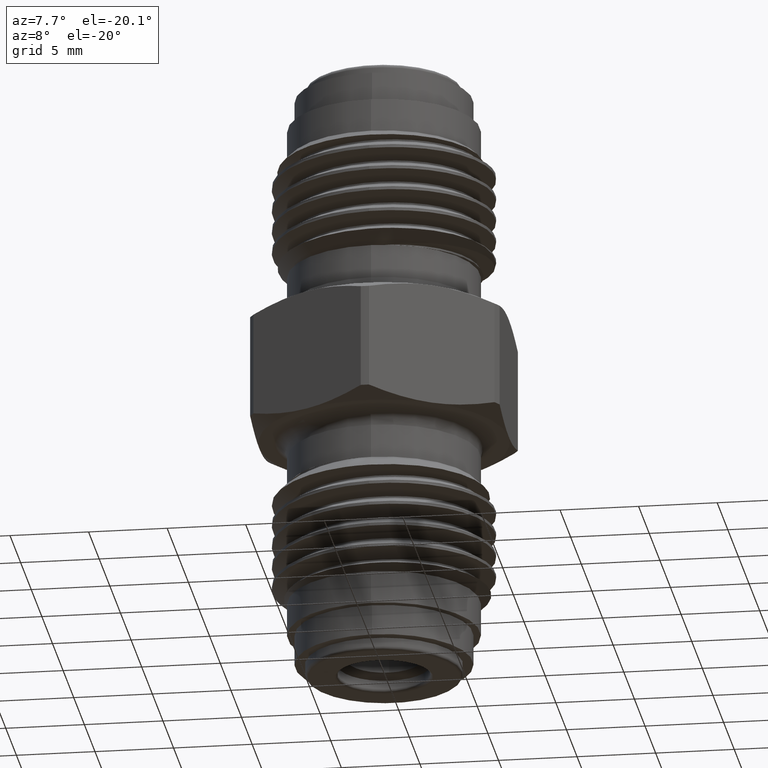
[diagram: clean part render]
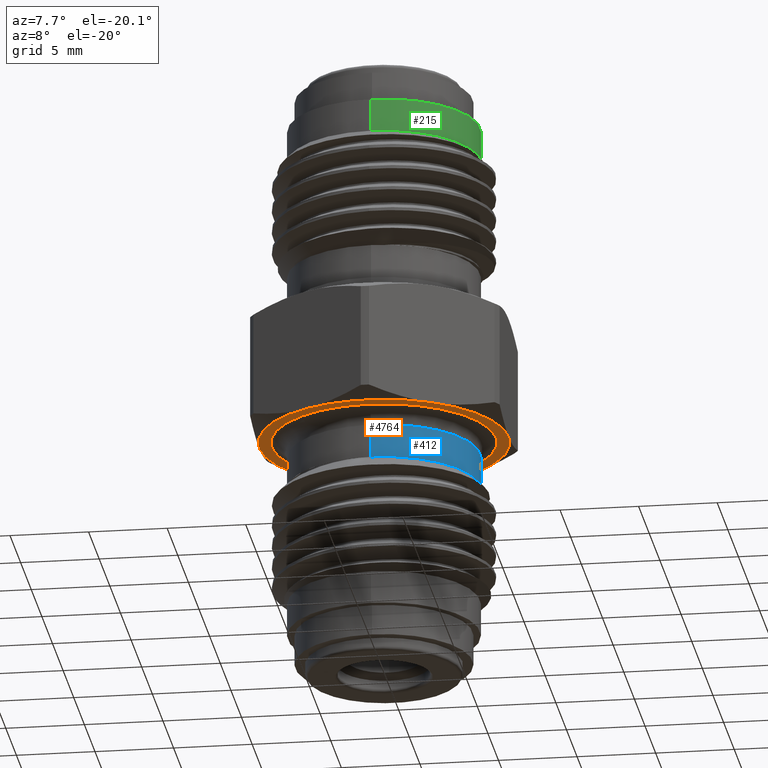
[diagram: same view with three faces highlighted in distinct colors, each labeled with its STEP entity id]
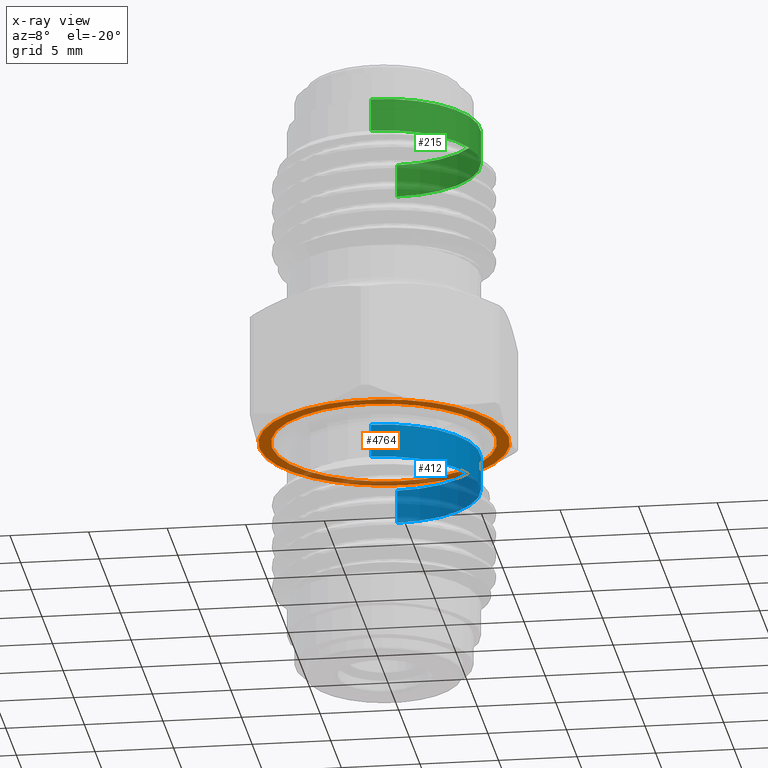
[diagram: x-ray of the same camera — body ghosted, the three highlighted faces saturated]
A machine part, auxiliary view with three faces highlighted in distinct colors.
The next image is the same camera in x-ray (body ghosted, the three faces saturated) — at least one of them is partly hidden behind the body in this view.
Their STEP definitions:

[orange] entity #4764 — the highlighted planar face has unit normal (0, 0, -1).
#330 = CIRCLE ( 'NONE', #5266, 0.2807499999999999440 ) ;
#478 = EDGE_CURVE ( 'NONE', #8395, #11326, #795, .T. ) ;
#740 = CARTESIAN_POINT ( 'NONE',  ( -0.1562499999999999722, -0.2706329386826370476, 0.6200000000000002176 ) ) ;
#795 = CIRCLE ( 'NONE', #5848, 0.3124999999999998890 ) ;
#945 = CARTESIAN_POINT ( 'NONE',  ( -0.3124999999999999445, 2.861832726960855779E-16, 0.6200000000000002176 ) ) ;
#1048 = DIRECTION ( 'NONE',  ( -6.123233995736775897E-17, -3.043985339206562950E-16, 1.000000000000000000 ) ) ;
#1206 = CARTESIAN_POINT ( 'NONE',  ( 0.3124999999999999445, 1.678907846065457719E-16, 0.6200000000000002176 ) ) ;
#1233 = CIRCLE ( 'NONE', #5167, 0.3124999999999998890 ) ;
#1550 = CARTESIAN_POINT ( 'NONE',  ( 1.709078754400476434E-18, 1.678907846065457473E-16, 0.6200000000000001066 ) ) ;
#1617 = DIRECTION ( 'NONE',  ( 1.776356839400250465E-15, 1.000000000000000000, 4.370956789862822629E-16 ) ) ;
#1982 = FACE_BOUND ( 'NONE', #12725, .T. ) ;
#2064 = AXIS2_PLACEMENT_3D ( 'NONE', #10279, #4002, #2979 ) ;
#2979 = DIRECTION ( 'NONE',  ( 0.000000000000000000, -1.000000000000000000, -4.865268020773399856E-16 ) ) ;
#3149 = ORIENTED_EDGE ( 'NONE', *, *, #12142, .T. ) ;
#3618 = CARTESIAN_POINT ( 'NONE',  ( 1.709078754400476434E-18, 1.678907846065457473E-16, 0.6200000000000001066 ) ) ;
#3625 = ORIENTED_EDGE ( 'NONE', *, *, #10004, .F. ) ;
#4002 = DIRECTION ( 'NONE',  ( -6.123233995736775897E-17, -3.043985339206562950E-16, 1.000000000000000000 ) ) ;
#4172 = CARTESIAN_POINT ( 'NONE',  ( -3.796405077356800094E-17, -1.883355586433717230E-16, 0.6199999999999999956 ) ) ;
#4187 = CARTESIAN_POINT ( 'NONE',  ( 4.753701418011220872E-17, 0.2807499999999997775, 0.6200000000000002176 ) ) ;
#4311 = ORIENTED_EDGE ( 'NONE', *, *, #13113, .T. ) ;
#4364 = AXIS2_PLACEMENT_3D ( 'NONE', #4187, #5053, #5237 ) ;
#4735 = DIRECTION ( 'NONE',  ( 0.000000000000000000, 1.000000000000000000, 4.370956789862822629E-16 ) ) ;
#4764 = ADVANCED_FACE ( 'NONE', ( #11558, #1982 ), #12462, .T. ) ;
#4903 = DIRECTION ( 'NONE',  ( -1.000000000000000000, 0.000000000000000000, 0.000000000000000000 ) ) ;
#4945 = DIRECTION ( 'NONE',  ( -0.000000000000000000, -0.000000000000000000, -1.000000000000000000 ) ) ;
#5053 = DIRECTION ( 'NONE',  ( 6.123233995736775897E-17, 3.043985339206562950E-16, -1.000000000000000000 ) ) ;
#5167 = AXIS2_PLACEMENT_3D ( 'NONE', #7374, #1048, #9529 ) ;
#5237 = DIRECTION ( 'NONE',  ( 0.000000000000000000, 1.000000000000000000, 3.043985339206562950E-16 ) ) ;
#5266 = AXIS2_PLACEMENT_3D ( 'NONE', #4172, #11741, #13627 ) ;
#5348 = VERTEX_POINT ( 'NONE', #740 ) ;
#5539 = EDGE_LOOP ( 'NONE', ( #3149, #6959, #12196, #12766, #8288, #3625 ) ) ;
#5550 = CARTESIAN_POINT ( 'NONE',  ( -0.1562500000000000000, 0.2706329386826369365, 0.6200000000000002176 ) ) ;
#5584 = CARTESIAN_POINT ( 'NONE',  ( 1.709078754400476434E-18, 1.678907846065457473E-16, 0.6200000000000001066 ) ) ;
#5636 = VERTEX_POINT ( 'NONE', #10628 ) ;
#5848 = AXIS2_PLACEMENT_3D ( 'NONE', #5925, #11290, #1617 ) ;
#5911 = EDGE_CURVE ( 'NONE', #5636, #11970, #6605, .T. ) ;
#5925 = CARTESIAN_POINT ( 'NONE',  ( 1.709078754400476434E-18, 1.678907846065457473E-16, 0.6200000000000001066 ) ) ;
#6058 = CIRCLE ( 'NONE', #8367, 0.3124999999999999445 ) ;
#6482 = ORIENTED_EDGE ( 'NONE', *, *, #5911, .T. ) ;
#6562 = CIRCLE ( 'NONE', #9572, 0.3124999999999998890 ) ;
#6605 = CIRCLE ( 'NONE', #2064, 0.2807499999999999440 ) ;
#6686 = CIRCLE ( 'NONE', #9770, 0.3124999999999998890 ) ;
#6959 = ORIENTED_EDGE ( 'NONE', *, *, #9137, .F. ) ;
#7374 = CARTESIAN_POINT ( 'NONE',  ( 1.709078754400476434E-18, 1.678907846065457473E-16, 0.6200000000000001066 ) ) ;
#7491 = EDGE_CURVE ( 'NONE', #9170, #8395, #6562, .T. ) ;
#8288 = ORIENTED_EDGE ( 'NONE', *, *, #11868, .F. ) ;
#8349 = CIRCLE ( 'NONE', #10721, 0.3124999999999998890 ) ;
#8367 = AXIS2_PLACEMENT_3D ( 'NONE', #11213, #4945, #4903 ) ;
#8395 = VERTEX_POINT ( 'NONE', #1206 ) ;
#8482 = VERTEX_POINT ( 'NONE', #5550 ) ;
#8879 = CARTESIAN_POINT ( 'NONE',  ( 0.1562499999999999167, 0.2706329386826371031, 0.6200000000000002176 ) ) ;
#9038 = DIRECTION ( 'NONE',  ( 0.000000000000000000, 1.000000000000000000, 4.370956789862822629E-16 ) ) ;
#9075 = CARTESIAN_POINT ( 'NONE',  ( -3.582091887506069533E-18, 0.2807499999999997775, 0.6200000000000001066 ) ) ;
#9137 = EDGE_CURVE ( 'NONE', #11326, #8482, #8349, .T. ) ;
#9170 = VERTEX_POINT ( 'NONE', #13183 ) ;
#9529 = DIRECTION ( 'NONE',  ( 0.000000000000000000, 1.000000000000000000, 4.370956789862822629E-16 ) ) ;
#9572 = AXIS2_PLACEMENT_3D ( 'NONE', #5584, #12967, #9038 ) ;
#9770 = AXIS2_PLACEMENT_3D ( 'NONE', #1550, #13260, #12139 ) ;
#9852 = VERTEX_POINT ( 'NONE', #945 ) ;
#10004 = EDGE_CURVE ( 'NONE', #9852, #5348, #1233, .T. ) ;
#10279 = CARTESIAN_POINT ( 'NONE',  ( -3.796405077356800094E-17, -1.883355586433717230E-16, 0.6199999999999999956 ) ) ;
#10628 = CARTESIAN_POINT ( 'NONE',  ( -3.796405077356799478E-17, -0.2807500000000001661, 0.6199999999999999956 ) ) ;
#10721 = AXIS2_PLACEMENT_3D ( 'NONE', #3618, #10995, #4735 ) ;
#10995 = DIRECTION ( 'NONE',  ( -6.123233995736775897E-17, -3.043985339206562950E-16, 1.000000000000000000 ) ) ;
#11213 = CARTESIAN_POINT ( 'NONE',  ( 0.000000000000000000, 0.000000000000000000, 0.6200000000000002176 ) ) ;
#11290 = DIRECTION ( 'NONE',  ( -6.123233995736775897E-17, -3.043985339206562950E-16, 1.000000000000000000 ) ) ;
#11326 = VERTEX_POINT ( 'NONE', #8879 ) ;
#11558 = FACE_OUTER_BOUND ( 'NONE', #5539, .T. ) ;
#11741 = DIRECTION ( 'NONE',  ( -6.123233995736775897E-17, -3.043985339206562950E-16, 1.000000000000000000 ) ) ;
#11868 = EDGE_CURVE ( 'NONE', #5348, #9170, #6686, .T. ) ;
#11970 = VERTEX_POINT ( 'NONE', #9075 ) ;
#12139 = DIRECTION ( 'NONE',  ( 1.776356839400250465E-15, 1.000000000000000000, 4.370956789862822629E-16 ) ) ;
#12142 = EDGE_CURVE ( 'NONE', #9852, #8482, #6058, .T. ) ;
#12196 = ORIENTED_EDGE ( 'NONE', *, *, #478, .F. ) ;
#12462 = PLANE ( 'NONE',  #4364 ) ;
#12725 = EDGE_LOOP ( 'NONE', ( #6482, #4311 ) ) ;
#12766 = ORIENTED_EDGE ( 'NONE', *, *, #7491, .F. ) ;
#12967 = DIRECTION ( 'NONE',  ( -6.123233995736775897E-17, -3.043985339206562950E-16, 1.000000000000000000 ) ) ;
#13113 = EDGE_CURVE ( 'NONE', #11970, #5636, #330, .T. ) ;
#13183 = CARTESIAN_POINT ( 'NONE',  ( 0.1562499999999999722, -0.2706329386826370476, 0.6200000000000002176 ) ) ;
#13260 = DIRECTION ( 'NONE',  ( -6.123233995736775897E-17, -3.043985339206562950E-16, 1.000000000000000000 ) ) ;
#13627 = DIRECTION ( 'NONE',  ( 0.000000000000000000, -1.000000000000000000, -4.865268020773399856E-16 ) ) ;

[blue] entity #412 — the highlighted cylindrical surface (partial cylindrical patch) has radius 6.1151 mm, axis along (-0, -0, 1).
#385 = EDGE_CURVE ( 'NONE', #4904, #1534, #5099, .T. ) ;
#412 = ADVANCED_FACE ( 'NONE', ( #7084 ), #3620, .T. ) ;
#562 = EDGE_CURVE ( 'NONE', #12055, #4904, #8602, .T. ) ;
#817 = CARTESIAN_POINT ( 'NONE',  ( -2.915424786220169670E-17, 0.2407499999999998808, 0.4949999999999999956 ) ) ;
#1409 = DIRECTION ( 'NONE',  ( 0.000000000000000000, -1.000000000000000000, -2.836809962268186072E-16 ) ) ;
#1458 = DIRECTION ( 'NONE',  ( -6.123233995736775897E-17, -3.043985339206562950E-16, 1.000000000000000000 ) ) ;
#1534 = VERTEX_POINT ( 'NONE', #5032 ) ;
#1808 = LINE ( 'NONE', #10859, #6305 ) ;
#2459 = CARTESIAN_POINT ( 'NONE',  ( -3.031000827889702337E-17, -1.502857419032896615E-16, 0.4949999999999998845 ) ) ;
#2589 = DIRECTION ( 'NONE',  ( -6.123233995736775897E-17, -3.043985339206562950E-16, 1.000000000000000000 ) ) ;
#2736 = AXIS2_PLACEMENT_3D ( 'NONE', #5786, #2589, #1409 ) ;
#2967 = CARTESIAN_POINT ( 'NONE',  ( -3.551475717527328763E-17, -0.2407500000000001583, 0.5799999999999998490 ) ) ;
#3036 = ORIENTED_EDGE ( 'NONE', *, *, #562, .F. ) ;
#3064 = CIRCLE ( 'NONE', #11950, 0.2407500000000000195 ) ;
#3620 = CYLINDRICAL_SURFACE ( 'NONE', #10782, 0.2407500000000000195 ) ;
#3840 = VERTEX_POINT ( 'NONE', #817 ) ;
#4617 = DIRECTION ( 'NONE',  ( 0.000000000000000000, -1.000000000000000000, -5.673619924536372144E-16 ) ) ;
#4904 = VERTEX_POINT ( 'NONE', #2967 ) ;
#5032 = CARTESIAN_POINT ( 'NONE',  ( -4.806738686653418487E-18, 0.2407499999999998253, 0.5800000000000000711 ) ) ;
#5099 = CIRCLE ( 'NONE', #2736, 0.2407499999999999918 ) ;
#5508 = EDGE_LOOP ( 'NONE', ( #7842, #10417, #12933, #3036 ) ) ;
#5643 = DIRECTION ( 'NONE',  ( 0.000000000000000000, -1.000000000000000000, -2.836809962268186072E-16 ) ) ;
#5782 = VECTOR ( 'NONE', #10646, 39.37007874015748143 ) ;
#5786 = CARTESIAN_POINT ( 'NONE',  ( -3.551475717527328763E-17, -1.761596172865454377E-16, 0.5799999999999999600 ) ) ;
#6305 = VECTOR ( 'NONE', #1458, 39.37007874015748143 ) ;
#6569 = EDGE_CURVE ( 'NONE', #3840, #1534, #1808, .T. ) ;
#7084 = FACE_OUTER_BOUND ( 'NONE', #5508, .T. ) ;
#7252 = EDGE_CURVE ( 'NONE', #12055, #3840, #3064, .T. ) ;
#7842 = ORIENTED_EDGE ( 'NONE', *, *, #7252, .T. ) ;
#8602 = LINE ( 'NONE', #11560, #5782 ) ;
#10002 = DIRECTION ( 'NONE',  ( -6.123233995736775897E-17, -3.043985339206562950E-16, 1.000000000000000000 ) ) ;
#10417 = ORIENTED_EDGE ( 'NONE', *, *, #6569, .T. ) ;
#10646 = DIRECTION ( 'NONE',  ( -6.123233995736775897E-17, -3.043985339206562950E-16, 1.000000000000000000 ) ) ;
#10782 = AXIS2_PLACEMENT_3D ( 'NONE', #12034, #10002, #4617 ) ;
#10859 = CARTESIAN_POINT ( 'NONE',  ( -2.898341115812631970E-17, 0.2407499999999996865, 0.9548350248954331487 ) ) ;
#11560 = CARTESIAN_POINT ( 'NONE',  ( -5.846678284759885375E-17, -0.2407500000000002971, 0.9548350248954328157 ) ) ;
#11941 = DIRECTION ( 'NONE',  ( -6.123233995736775897E-17, -3.043985339206562950E-16, 1.000000000000000000 ) ) ;
#11950 = AXIS2_PLACEMENT_3D ( 'NONE', #2459, #11941, #5643 ) ;
#12034 = CARTESIAN_POINT ( 'NONE',  ( -5.846678284759885375E-17, -2.902588493268279793E-16, 0.9548350248954329267 ) ) ;
#12055 = VERTEX_POINT ( 'NONE', #12228 ) ;
#12228 = CARTESIAN_POINT ( 'NONE',  ( 2.640644660661480284E-18, -0.2407500000000001583, 0.4949999999999998290 ) ) ;
#12933 = ORIENTED_EDGE ( 'NONE', *, *, #385, .F. ) ;

[green] entity #215 — the highlighted cylindrical surface (partial cylindrical patch) has radius 6.1151 mm, axis along (-0, 0, -1).
#215 = ADVANCED_FACE ( 'NONE', ( #12840 ), #1936, .T. ) ;
#520 = EDGE_CURVE ( 'NONE', #2489, #6255, #2310, .T. ) ;
#813 = CARTESIAN_POINT ( 'NONE',  ( -6.704941225331197769E-18, 3.294010707687381780E-17, 1.440500000000009440 ) ) ;
#1936 = CYLINDRICAL_SURFACE ( 'NONE', #10064, 0.2407500000000000195 ) ;
#2110 = EDGE_CURVE ( 'NONE', #12655, #2489, #9706, .T. ) ;
#2310 = CIRCLE ( 'NONE', #3873, 0.2407499999999999918 ) ;
#2489 = VERTEX_POINT ( 'NONE', #3838 ) ;
#2640 = ORIENTED_EDGE ( 'NONE', *, *, #11052, .T. ) ;
#3379 = DIRECTION ( 'NONE',  ( -6.123233995736775897E-17, 3.043985339206562950E-16, -1.000000000000000000 ) ) ;
#3838 = CARTESIAN_POINT ( 'NONE',  ( -1.178722544179330244E-17, 0.2407500000000000473, 1.357499999999999929 ) ) ;
#3873 = AXIS2_PLACEMENT_3D ( 'NONE', #10277, #3955, #11332 ) ;
#3955 = DIRECTION ( 'NONE',  ( -6.123233995736775897E-17, 3.043985339206562950E-16, -1.000000000000000000 ) ) ;
#4003 = VECTOR ( 'NONE', #13083, 39.37007874015748143 ) ;
#4761 = CARTESIAN_POINT ( 'NONE',  ( -2.898341115812633819E-17, -0.2407499999999996865, 0.5951649751045671177 ) ) ;
#5079 = VECTOR ( 'NONE', #5451, 39.37007874015748143 ) ;
#5423 = DIRECTION ( 'NONE',  ( 0.000000000000000000, 1.000000000000000000, 2.836809962268186072E-16 ) ) ;
#5451 = DIRECTION ( 'NONE',  ( -6.123233995736775897E-17, 3.043985339206562950E-16, -1.000000000000000000 ) ) ;
#5587 = ORIENTED_EDGE ( 'NONE', *, *, #10368, .T. ) ;
#6255 = VERTEX_POINT ( 'NONE', #11969 ) ;
#6838 = LINE ( 'NONE', #4761, #4003 ) ;
#8663 = ORIENTED_EDGE ( 'NONE', *, *, #520, .F. ) ;
#9365 = CARTESIAN_POINT ( 'NONE',  ( -6.704941225331197769E-18, 0.2407500000000000473, 1.440500000000009440 ) ) ;
#9706 = LINE ( 'NONE', #9758, #5079 ) ;
#9758 = CARTESIAN_POINT ( 'NONE',  ( -5.846678284759886608E-17, 0.2407500000000002971, 0.5951649751045672287 ) ) ;
#10057 = EDGE_LOOP ( 'NONE', ( #5587, #2640, #8663, #10727 ) ) ;
#10064 = AXIS2_PLACEMENT_3D ( 'NONE', #10709, #3379, #5423 ) ;
#10277 = CARTESIAN_POINT ( 'NONE',  ( -1.178722544179330244E-17, 5.820518539229117757E-17, 1.357499999999999929 ) ) ;
#10368 = EDGE_CURVE ( 'NONE', #12655, #13552, #11790, .T. ) ;
#10371 = AXIS2_PLACEMENT_3D ( 'NONE', #813, #12473, #13425 ) ;
#10709 = CARTESIAN_POINT ( 'NONE',  ( -5.846678284759886608E-17, 2.902588493268279793E-16, 0.5951649751045671177 ) ) ;
#10727 = ORIENTED_EDGE ( 'NONE', *, *, #2110, .F. ) ;
#11052 = EDGE_CURVE ( 'NONE', #13552, #6255, #6838, .T. ) ;
#11332 = DIRECTION ( 'NONE',  ( 0.000000000000000000, 1.000000000000000000, 0.000000000000000000 ) ) ;
#11790 = CIRCLE ( 'NONE', #10371, 0.2407500000000000195 ) ;
#11969 = CARTESIAN_POINT ( 'NONE',  ( 1.873982674398422828E-17, -0.2407499999999999085, 1.357499999999999929 ) ) ;
#12473 = DIRECTION ( 'NONE',  ( -6.123233995736775897E-17, 3.043985339206562950E-16, -1.000000000000000000 ) ) ;
#12619 = CARTESIAN_POINT ( 'NONE',  ( 2.023728835591026584E-17, -0.2407500000000000195, 1.440500000000009440 ) ) ;
#12655 = VERTEX_POINT ( 'NONE', #9365 ) ;
#12840 = FACE_OUTER_BOUND ( 'NONE', #10057, .T. ) ;
#13083 = DIRECTION ( 'NONE',  ( -6.123233995736775897E-17, 3.043985339206562950E-16, -1.000000000000000000 ) ) ;
#13425 = DIRECTION ( 'NONE',  ( 0.000000000000000000, 1.000000000000000000, 0.000000000000000000 ) ) ;
#13552 = VERTEX_POINT ( 'NONE', #12619 ) ;